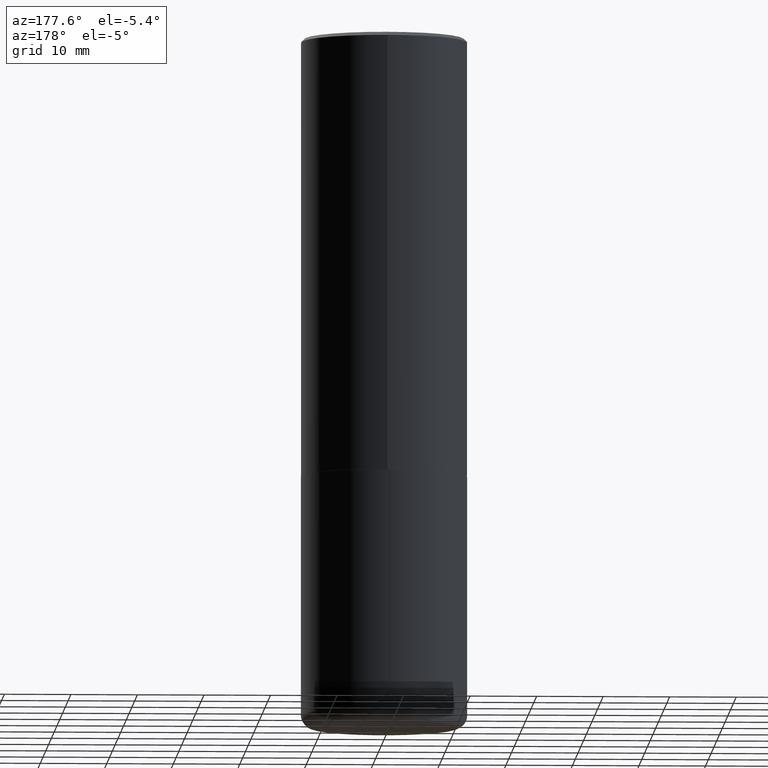
[diagram: clean part render]
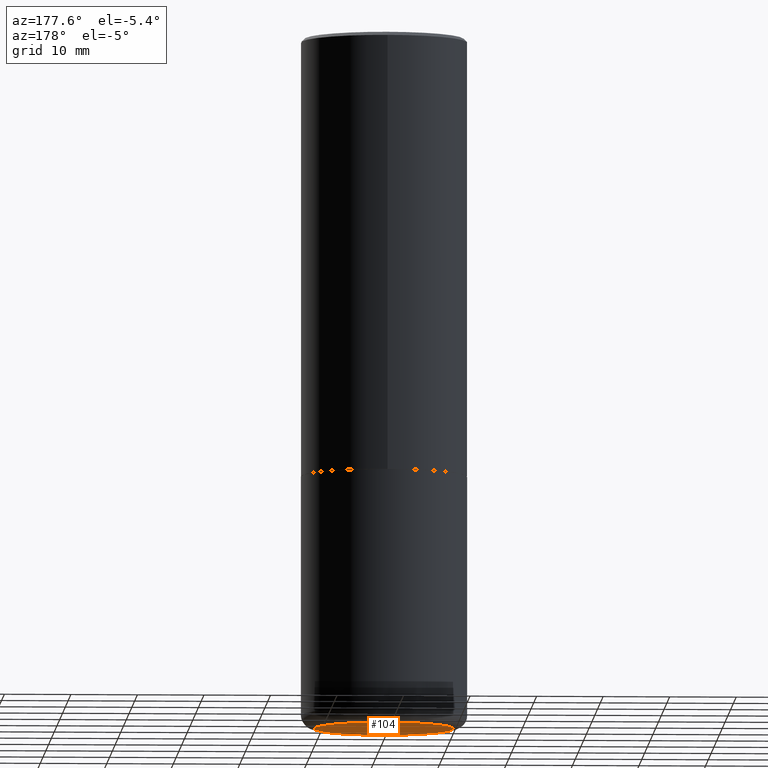
[diagram: same view with one face highlighted and labeled with its STEP entity id]
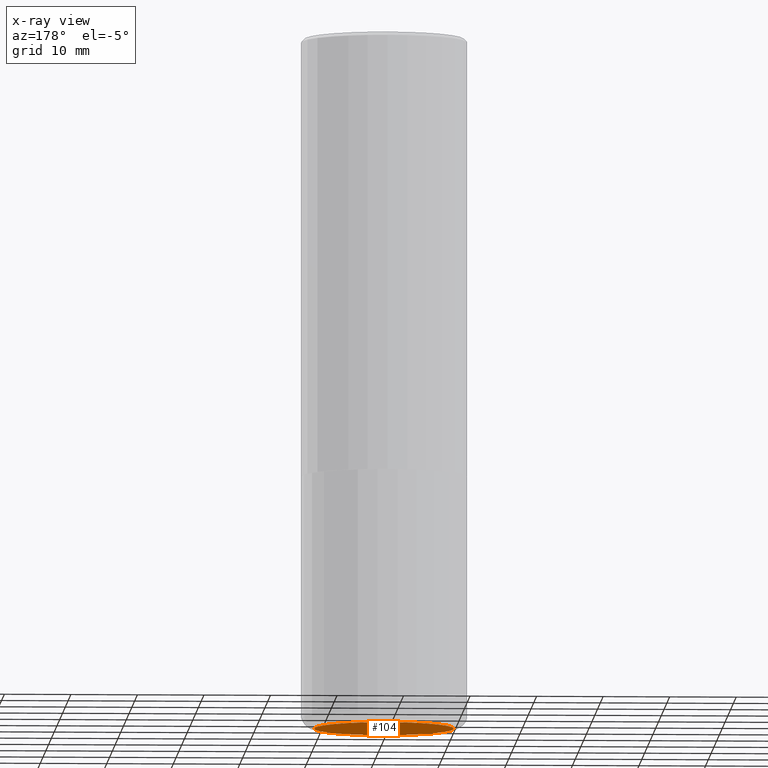
[diagram: x-ray of the same camera — body ghosted, the highlighted face saturated]
A machine part, auxiliary view. The second image highlights one B-rep face of the part: STEP entity #104.
The next image is the same camera in x-ray: the body ghosted, the highlighted face saturated — about 0% of this face is hidden behind the body in this view.
In plain terms, the highlighted planar face has unit normal (0, -0, -1).
Its self-contained STEP definition (entity closure, byte-faithful):
#16 = FACE_OUTER_BOUND ( 'NONE', #158, .T. ) ;
#26 = CIRCLE ( 'NONE', #299, 0.4134499999999999287 ) ;
#35 = VERTEX_POINT ( 'NONE', #178 ) ;
#36 = AXIS2_PLACEMENT_3D ( 'NONE', #242, #152, #405 ) ;
#40 = DIRECTION ( 'NONE',  ( 1.000000000000000000, -6.982962677686266711E-15, 0.000000000000000000 ) ) ;
#104 = ADVANCED_FACE ( 'NONE', ( #16 ), #275, .T. ) ;
#108 = AXIS2_PLACEMENT_3D ( 'NONE', #404, #118, #150 ) ;
#110 = EDGE_CURVE ( 'NONE', #35, #146, #224, .T. ) ;
#118 = DIRECTION ( 'NONE',  ( 2.438088387897960049E-29, -3.491481338843145188E-15, -1.000000000000000000 ) ) ;
#138 = ORIENTED_EDGE ( 'NONE', *, *, #110, .F. ) ;
#146 = VERTEX_POINT ( 'NONE', #352 ) ;
#150 = DIRECTION ( 'NONE',  ( -1.000000000000000000, 6.982962677686265922E-15, -4.876176775795935793E-29 ) ) ;
#152 = DIRECTION ( 'NONE',  ( -2.445468806185136597E-29, 3.491481338843145583E-15, 1.000000000000000000 ) ) ;
#158 = EDGE_LOOP ( 'NONE', ( #138, #198 ) ) ;
#178 = CARTESIAN_POINT ( 'NONE',  ( 0.4134499999999999287, -1.718297626098264901E-14, -4.094500000000000917 ) ) ;
#198 = ORIENTED_EDGE ( 'NONE', *, *, #340, .F. ) ;
#224 = CIRCLE ( 'NONE', #36, 0.4134499999999999287 ) ;
#234 = CARTESIAN_POINT ( 'NONE',  ( 1.001297202692504327E-28, -1.429587034189326465E-14, -4.094500000000000917 ) ) ;
#236 = DIRECTION ( 'NONE',  ( -2.445468806185136597E-29, 3.491481338843145583E-15, 1.000000000000000000 ) ) ;
#242 = CARTESIAN_POINT ( 'NONE',  ( 1.001297202692504327E-28, -1.429587034189326465E-14, -4.094500000000000917 ) ) ;
#275 = PLANE ( 'NONE',  #108 ) ;
#299 = AXIS2_PLACEMENT_3D ( 'NONE', #234, #236, #40 ) ;
#340 = EDGE_CURVE ( 'NONE', #146, #35, #26, .T. ) ;
#352 = CARTESIAN_POINT ( 'NONE',  ( -0.4134499999999999287, -1.094114304368804896E-14, -4.094500000000000917 ) ) ;
#404 = CARTESIAN_POINT ( 'NONE',  ( 6.234605142301953637E-29, -1.970670677196138597E-14, -4.094500000000000917 ) ) ;
#405 = DIRECTION ( 'NONE',  ( 1.000000000000000000, -6.982962677686266711E-15, 0.000000000000000000 ) ) ;